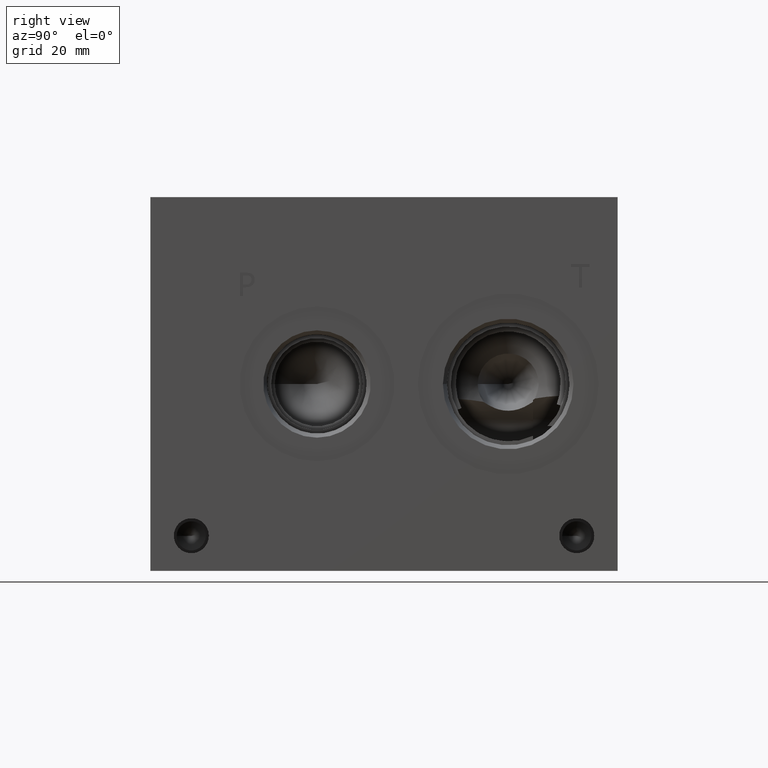
[diagram: clean part render]
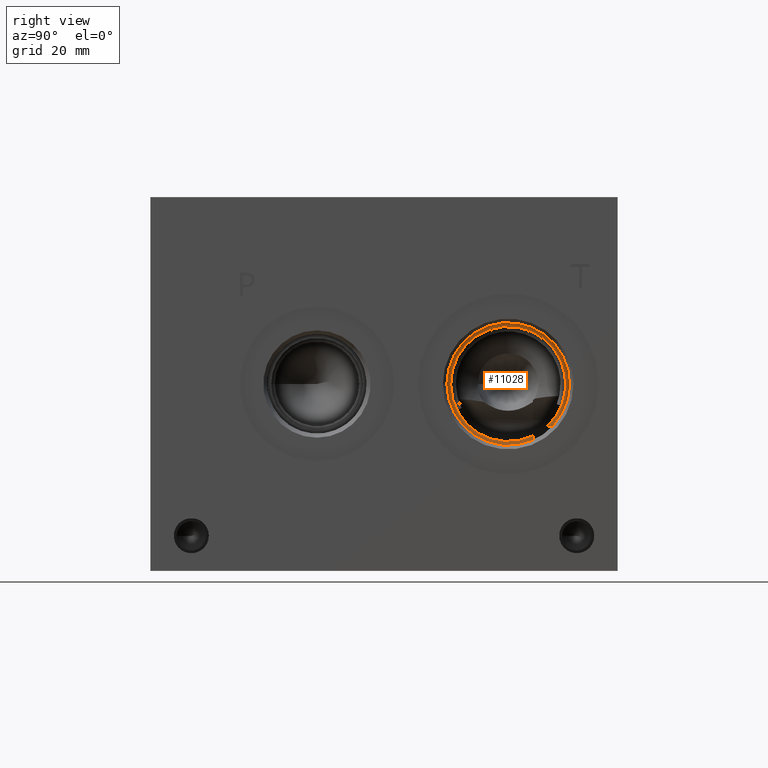
[diagram: same view with one face highlighted and labeled with its STEP entity id]
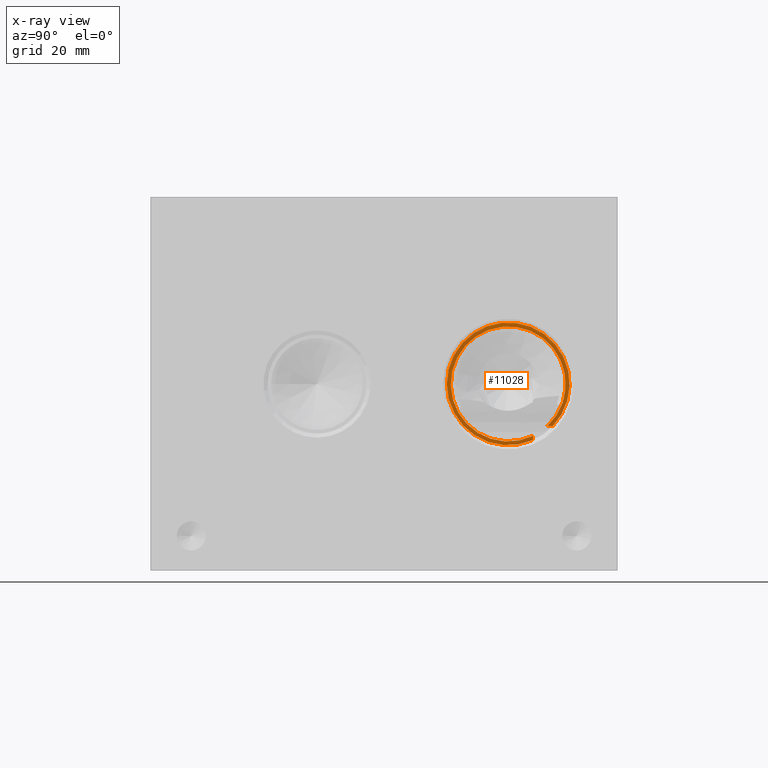
[diagram: x-ray of the same camera — body ghosted, the highlighted face saturated]
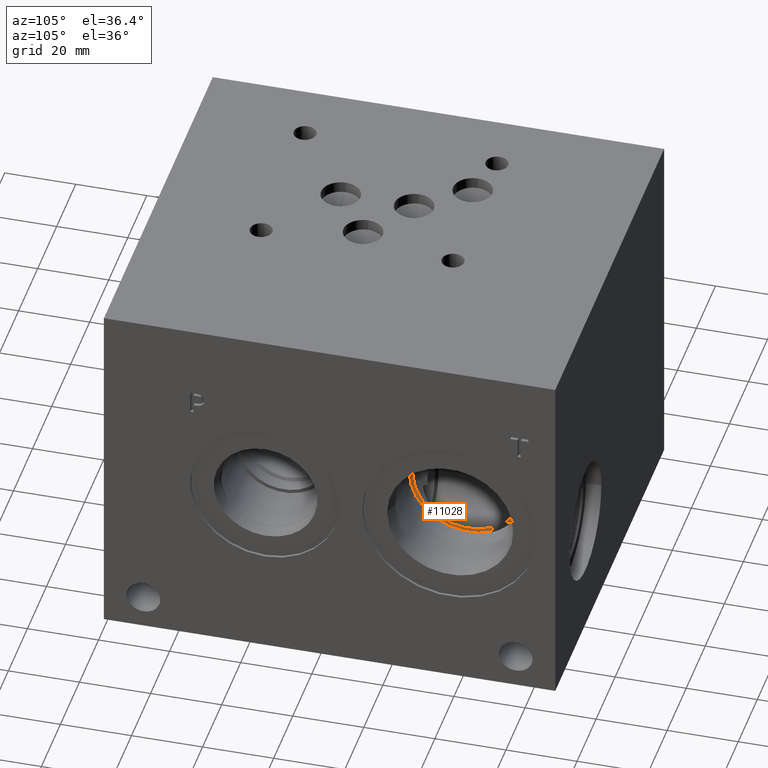
[diagram: same view with one face highlighted and labeled with its STEP entity id]
A machine part, right view. The second image highlights one B-rep face of the part: STEP entity #11028.
The next image is the same camera in x-ray: the body ghosted, the highlighted face saturated — about 0% of this face is hidden behind the body in this view.
A second angle (auxiliary view) of the same face is appended — the face is thin or edge-on in the first view.
In plain terms, the highlighted planar face has unit normal (1, 0, 0).
Its self-contained STEP definition (entity closure, byte-faithful):
#174=CIRCLE('',#11527,16.6751);
#175=CIRCLE('',#11528,16.6751);
#176=CIRCLE('',#11529,15.6337);
#716=PLANE('',#11526);
#1204=FACE_OUTER_BOUND('',#1826,.T.);
#1826=EDGE_LOOP('',(#9434,#9435,#9436,#9437,#9438));
#2899=LINE('',#18629,#3924);
#2901=LINE('',#18654,#3926);
#3924=VECTOR('',#13483,10.);
#3926=VECTOR('',#13495,10.);
#5178=VERTEX_POINT('',#18626);
#5179=VERTEX_POINT('',#18628);
#5185=VERTEX_POINT('',#18652);
#5186=VERTEX_POINT('',#18653);
#5187=VERTEX_POINT('',#18655);
#6649=EDGE_CURVE('',#5178,#5179,#2899,.T.);
#6657=EDGE_CURVE('',#5185,#5186,#2901,.T.);
#6658=EDGE_CURVE('',#5185,#5187,#174,.T.);
#6659=EDGE_CURVE('',#5187,#5179,#175,.T.);
#6660=EDGE_CURVE('',#5186,#5178,#176,.T.);
#9434=ORIENTED_EDGE('',*,*,#6657,.F.);
#9435=ORIENTED_EDGE('',*,*,#6658,.T.);
#9436=ORIENTED_EDGE('',*,*,#6659,.T.);
#9437=ORIENTED_EDGE('',*,*,#6649,.F.);
#9438=ORIENTED_EDGE('',*,*,#6660,.F.);
#11028=ADVANCED_FACE('',(#1204),#716,.T.);
#11526=AXIS2_PLACEMENT_3D('',#18651,#13493,#13494);
#11527=AXIS2_PLACEMENT_3D('',#18656,#13496,#13497);
#11528=AXIS2_PLACEMENT_3D('',#18657,#13498,#13499);
#11529=AXIS2_PLACEMENT_3D('',#18658,#13500,#13501);
#13483=DIRECTION('',(0.,0.,-1.));
#13493=DIRECTION('center_axis',(1.,0.,0.));
#13494=DIRECTION('ref_axis',(0.,1.,0.));
#13495=DIRECTION('',(0.,-1.,0.));
#13496=DIRECTION('center_axis',(1.,0.,0.));
#13497=DIRECTION('ref_axis',(0.,1.,0.));
#13498=DIRECTION('center_axis',(1.,0.,0.));
#13499=DIRECTION('ref_axis',(0.,1.,0.));
#13500=DIRECTION('center_axis',(1.,0.,0.));
#13501=DIRECTION('ref_axis',(0.,1.,0.));
#18626=CARTESIAN_POINT('',(94.4626,103.9876,36.6894998426704));
#18628=CARTESIAN_POINT('',(94.4626,103.9876,35.5437685187331));
#18629=CARTESIAN_POINT('',(94.4626,103.9876,42.8625));
#18651=CARTESIAN_POINT('Origin',(94.4626,97.2566,50.8));
#18652=CARTESIAN_POINT('',(94.4626,109.35764848607,39.3272677383379));
#18653=CARTESIAN_POINT('',(94.4626,107.876816106189,39.3272677383351));
#18654=CARTESIAN_POINT('',(94.4626,110.6932,39.3272677383367));
#18655=CARTESIAN_POINT('',(94.4625999999996,80.5815,50.8));
#18656=CARTESIAN_POINT('Origin',(94.4626,97.2566,50.8));
#18657=CARTESIAN_POINT('Origin',(94.4626,97.2566,50.8));
#18658=CARTESIAN_POINT('Origin',(94.4626,97.2566,50.8));